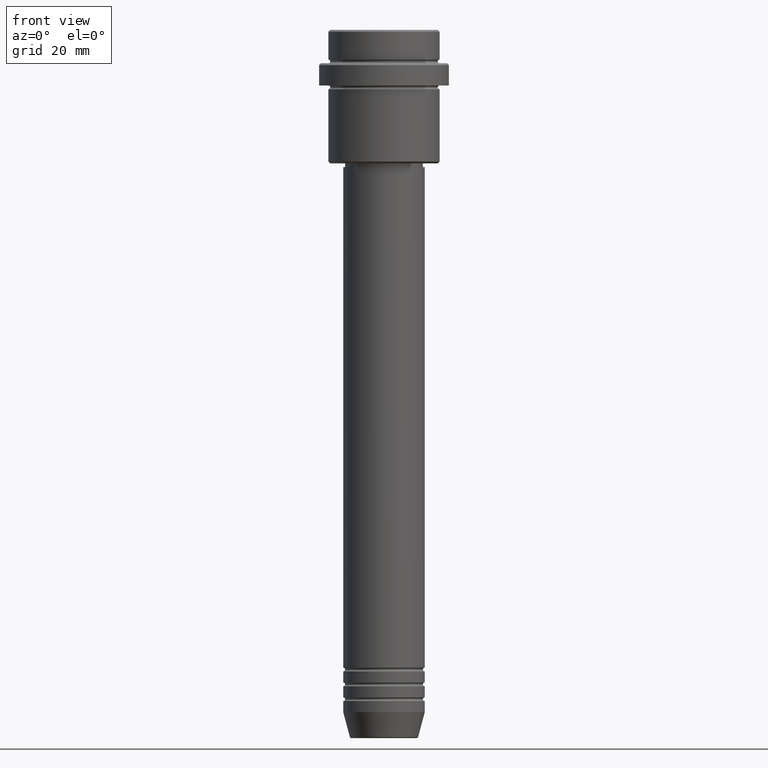
[diagram: clean part render]
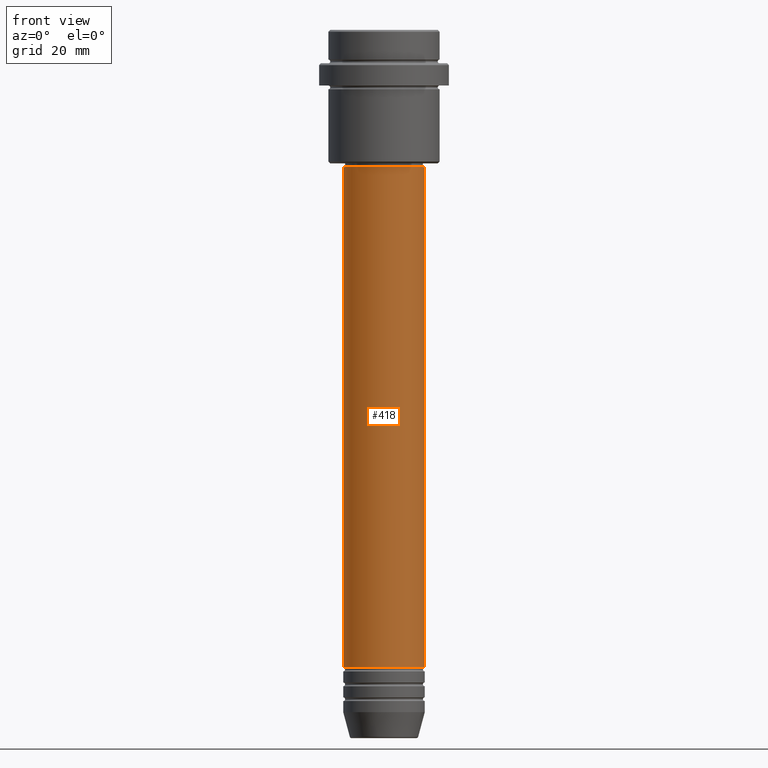
[diagram: same view with one face highlighted and labeled with its STEP entity id]
A machine part, front view. The second image highlights one B-rep face of the part: STEP entity #418.
In plain terms, the highlighted cylindrical surface (partial cylindrical patch) has radius 11 mm, axis along (-0, -0, 1).
Its self-contained STEP definition (entity closure, byte-faithful):
#8 = VECTOR ( 'NONE', #1176, 1000.000000000000000 ) ;
#48 = AXIS2_PLACEMENT_3D ( 'NONE', #956, #631, #1063 ) ;
#82 = LINE ( 'NONE', #1259, #717 ) ;
#114 = CARTESIAN_POINT ( 'NONE',  ( 0.000000000000000000, 0.000000000000000000, -171.9999999999999147 ) ) ;
#168 = CIRCLE ( 'NONE', #1330, 11.00000000000000000 ) ;
#179 = DIRECTION ( 'NONE',  ( -0.000000000000000000, -0.000000000000000000, 1.000000000000000000 ) ) ;
#211 = CARTESIAN_POINT ( 'NONE',  ( -11.00000000000000000, 1.347111479062088405E-15, 0.000000000000000000 ) ) ;
#253 = CARTESIAN_POINT ( 'NONE',  ( 0.000000000000000000, 0.000000000000000000, -37.00000000000001421 ) ) ;
#418 = ADVANCED_FACE ( 'NONE', ( #499 ), #847, .T. ) ;
#429 = LINE ( 'NONE', #211, #8 ) ;
#485 = ORIENTED_EDGE ( 'NONE', *, *, #653, .T. ) ;
#499 = FACE_OUTER_BOUND ( 'NONE', #817, .T. ) ;
#501 = EDGE_CURVE ( 'NONE', #1362, #566, #168, .T. ) ;
#507 = EDGE_CURVE ( 'NONE', #1362, #744, #429, .T. ) ;
#528 = CARTESIAN_POINT ( 'NONE',  ( -10.99999999999999822, 1.347111479062088207E-15, -37.00000000000001421 ) ) ;
#556 = DIRECTION ( 'NONE',  ( -0.000000000000000000, -0.000000000000000000, 1.000000000000000000 ) ) ;
#566 = VERTEX_POINT ( 'NONE', #854 ) ;
#593 = CARTESIAN_POINT ( 'NONE',  ( 10.99999999999999822, 0.000000000000000000, -37.00000000000001421 ) ) ;
#631 = DIRECTION ( 'NONE',  ( -0.000000000000000000, -0.000000000000000000, 1.000000000000000000 ) ) ;
#653 = EDGE_CURVE ( 'NONE', #566, #978, #82, .T. ) ;
#659 = CARTESIAN_POINT ( 'NONE',  ( -11.00000000000000000, 1.347111479062088405E-15, -171.9999999999999147 ) ) ;
#690 = DIRECTION ( 'NONE',  ( -0.000000000000000000, -0.000000000000000000, 1.000000000000000000 ) ) ;
#717 = VECTOR ( 'NONE', #179, 1000.000000000000000 ) ;
#744 = VERTEX_POINT ( 'NONE', #528 ) ;
#767 = CIRCLE ( 'NONE', #1109, 10.99999999999999822 ) ;
#817 = EDGE_LOOP ( 'NONE', ( #1229, #1340, #485, #997 ) ) ;
#847 = CYLINDRICAL_SURFACE ( 'NONE', #48, 11.00000000000000000 ) ;
#854 = CARTESIAN_POINT ( 'NONE',  ( 11.00000000000000000, 0.000000000000000000, -171.9999999999999147 ) ) ;
#867 = DIRECTION ( 'NONE',  ( 1.000000000000000000, 0.000000000000000000, 0.000000000000000000 ) ) ;
#956 = CARTESIAN_POINT ( 'NONE',  ( 0.000000000000000000, 0.000000000000000000, 0.000000000000000000 ) ) ;
#978 = VERTEX_POINT ( 'NONE', #593 ) ;
#997 = ORIENTED_EDGE ( 'NONE', *, *, #1026, .F. ) ;
#1020 = DIRECTION ( 'NONE',  ( 1.000000000000000000, 0.000000000000000000, 0.000000000000000000 ) ) ;
#1026 = EDGE_CURVE ( 'NONE', #744, #978, #767, .T. ) ;
#1063 = DIRECTION ( 'NONE',  ( 1.000000000000000000, 0.000000000000000000, 0.000000000000000000 ) ) ;
#1109 = AXIS2_PLACEMENT_3D ( 'NONE', #253, #690, #1020 ) ;
#1176 = DIRECTION ( 'NONE',  ( -0.000000000000000000, -0.000000000000000000, 1.000000000000000000 ) ) ;
#1229 = ORIENTED_EDGE ( 'NONE', *, *, #507, .F. ) ;
#1259 = CARTESIAN_POINT ( 'NONE',  ( 11.00000000000000000, 0.000000000000000000, 0.000000000000000000 ) ) ;
#1330 = AXIS2_PLACEMENT_3D ( 'NONE', #114, #556, #867 ) ;
#1340 = ORIENTED_EDGE ( 'NONE', *, *, #501, .T. ) ;
#1362 = VERTEX_POINT ( 'NONE', #659 ) ;